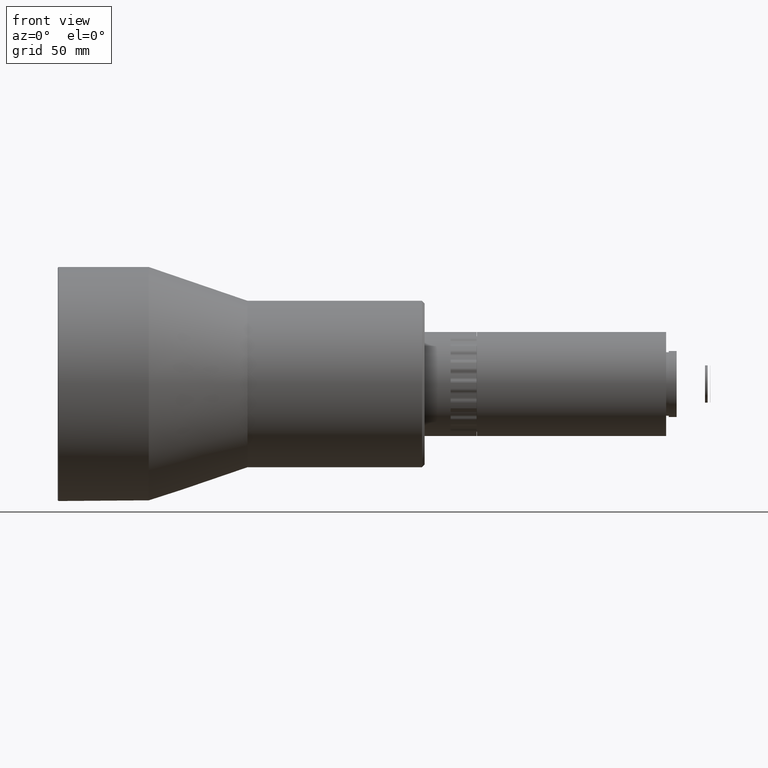
[diagram: clean part render]
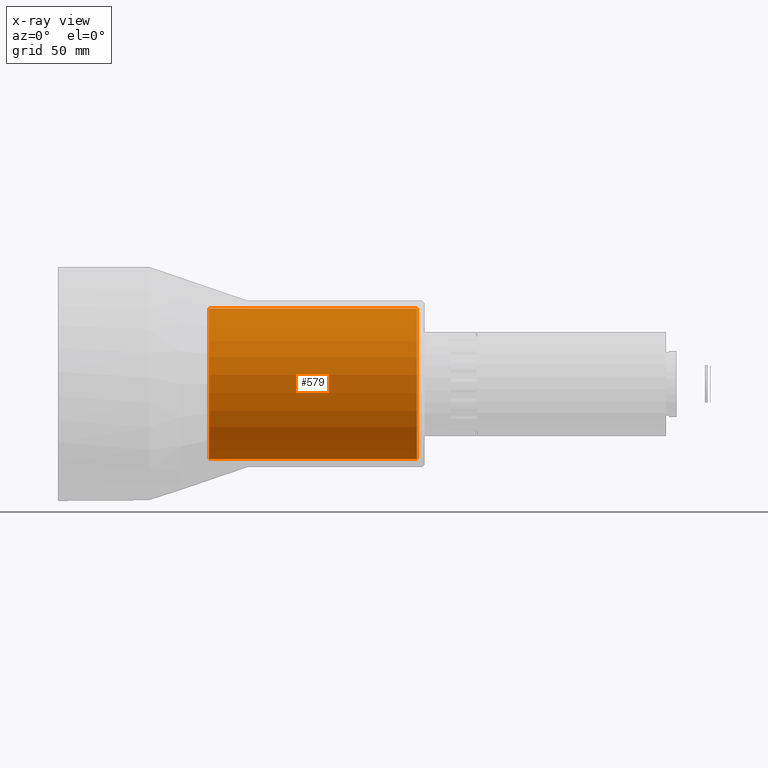
[diagram: x-ray — body ghosted, one internal face saturated and labeled with its STEP entity id]
A machine part, front view, then the same camera in x-ray: the body is ghosted and one INTERNAL B-rep face — a face not visible from any outside direction — is saturated and labeled: STEP entity #579.
In plain terms, the highlighted cylindrical surface (bore or boss wall) has radius 29 mm, axis along (-1, -0, -0).
Its self-contained STEP definition (entity closure, byte-faithful):
#92 = FACE_OUTER_BOUND ( 'NONE', #6787, .T. ) ;
#579 = ADVANCED_FACE ( 'NONE', ( #92, #2510 ), #4901, .F. ) ;
#958 = EDGE_CURVE ( 'NONE', #6430, #6430, #5478, .T. ) ;
#1142 = DIRECTION ( 'NONE',  ( 0.000000000000000000, 0.000000000000000000, 1.000000000000000000 ) ) ;
#1184 = DIRECTION ( 'NONE',  ( 0.000000000000000000, 0.000000000000000000, 1.000000000000000000 ) ) ;
#1451 = AXIS2_PLACEMENT_3D ( 'NONE', #3823, #5110, #6219 ) ;
#1592 = CARTESIAN_POINT ( 'NONE',  ( -19.58178943523735427, 14.57465430743931201, 189.0850000000000364 ) ) ;
#1734 = DIRECTION ( 'NONE',  ( -1.000000000000000000, -0.000000000000000000, -0.000000000000000000 ) ) ;
#1849 = ORIENTED_EDGE ( 'NONE', *, *, #4230, .F. ) ;
#1869 = CARTESIAN_POINT ( 'NONE',  ( 60.41821056476263863, 14.57465430743931201, 160.0850000000000080 ) ) ;
#2510 = FACE_OUTER_BOUND ( 'NONE', #5393, .T. ) ;
#2866 = AXIS2_PLACEMENT_3D ( 'NONE', #7319, #4775, #1184 ) ;
#3004 = CIRCLE ( 'NONE', #6511, 29.00000000000002487 ) ;
#3823 = CARTESIAN_POINT ( 'NONE',  ( -19.58178943523735427, 14.57465430743931201, 160.0850000000000080 ) ) ;
#4230 = EDGE_CURVE ( 'NONE', #4868, #4868, #3004, .T. ) ;
#4775 = DIRECTION ( 'NONE',  ( -1.000000000000000000, -0.000000000000000000, -0.000000000000000000 ) ) ;
#4868 = VERTEX_POINT ( 'NONE', #7113 ) ;
#4901 = CYLINDRICAL_SURFACE ( 'NONE', #2866, 29.00000000000002487 ) ;
#5110 = DIRECTION ( 'NONE',  ( 1.000000000000000000, 0.000000000000000000, 0.000000000000000000 ) ) ;
#5393 = EDGE_LOOP ( 'NONE', ( #7778 ) ) ;
#5478 = CIRCLE ( 'NONE', #1451, 29.00000000000002487 ) ;
#6219 = DIRECTION ( 'NONE',  ( 0.000000000000000000, 0.000000000000000000, 1.000000000000000000 ) ) ;
#6430 = VERTEX_POINT ( 'NONE', #1592 ) ;
#6511 = AXIS2_PLACEMENT_3D ( 'NONE', #1869, #1734, #1142 ) ;
#6787 = EDGE_LOOP ( 'NONE', ( #1849 ) ) ;
#7113 = CARTESIAN_POINT ( 'NONE',  ( 60.41821056476263863, 14.57465430743931201, 189.0850000000000364 ) ) ;
#7319 = CARTESIAN_POINT ( 'NONE',  ( -105.9567210347150166, 14.57465430743931201, 160.0850000000000080 ) ) ;
#7778 = ORIENTED_EDGE ( 'NONE', *, *, #958, .F. ) ;